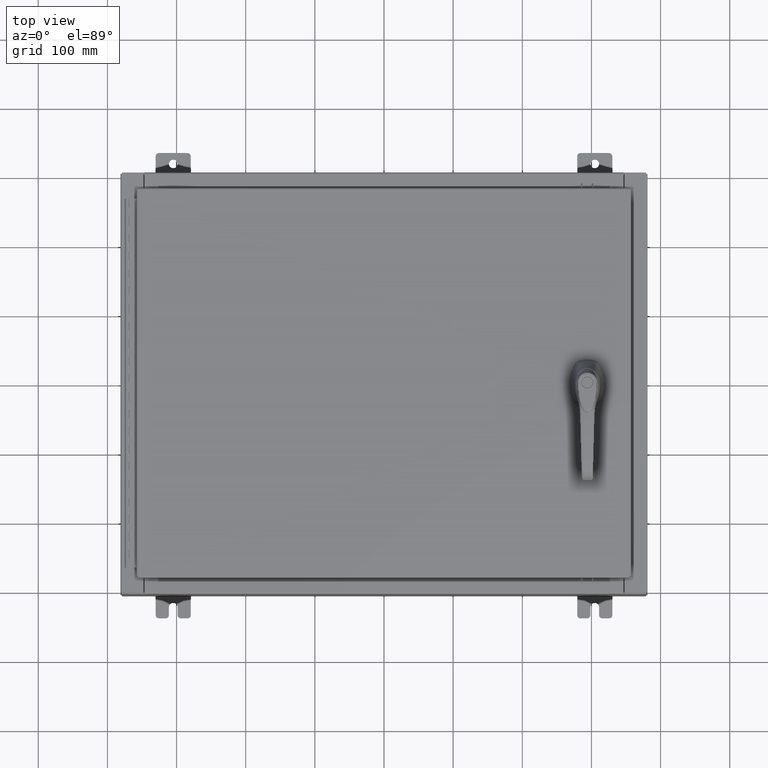
[diagram: clean part render]
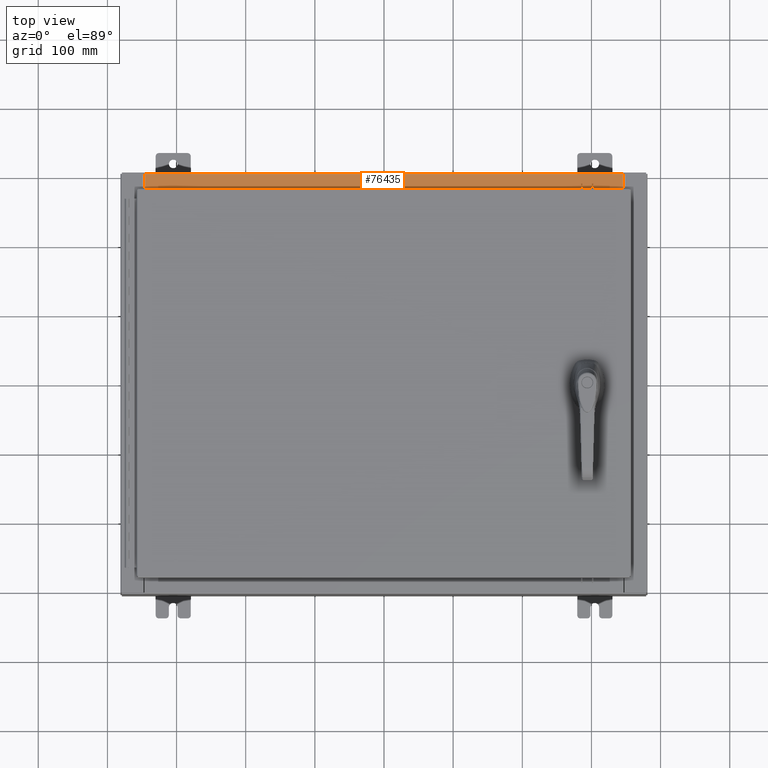
[diagram: same view with one face highlighted and labeled with its STEP entity id]
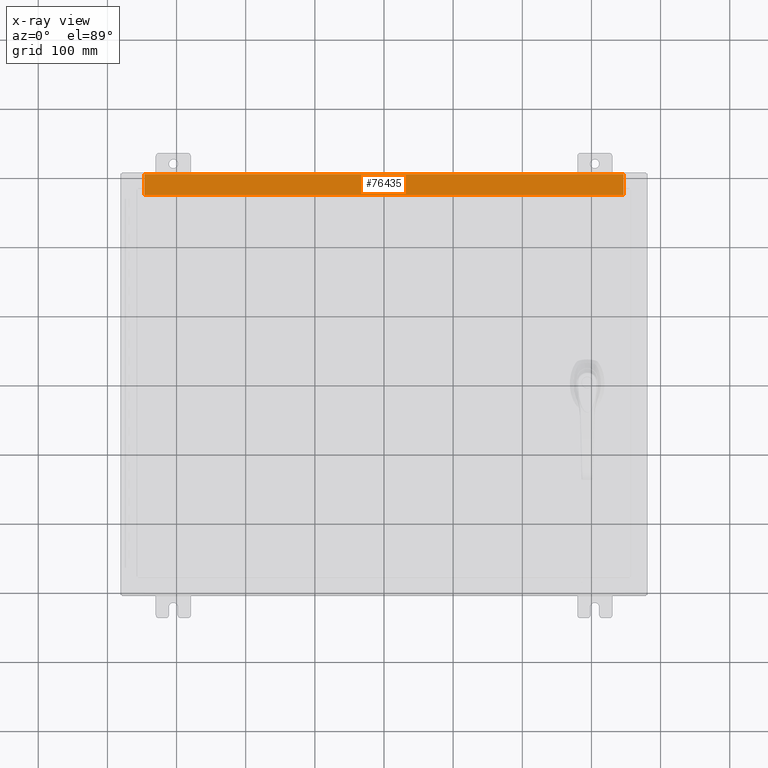
[diagram: x-ray of the same camera — body ghosted, the highlighted face saturated]
A machine part, top view. The second image highlights one B-rep face of the part: STEP entity #76435.
The next image is the same camera in x-ray: the body ghosted, the highlighted face saturated — about 0% of this face is hidden behind the body in this view.
In plain terms, the highlighted planar face has unit normal (0, 0, 1).
Its self-contained STEP definition (entity closure, byte-faithful):
#5147 = FACE_OUTER_BOUND ( 'NONE', #111262, .T. ) ;
#6278 = LINE ( 'NONE', #43637, #49646 ) ;
#7821 = DIRECTION ( 'NONE',  ( -0.0000000000000000000, 1.000000000000000000, -3.566381192773190000E-015 ) ) ;
#8275 = EDGE_CURVE ( 'NONE', #11711, #31413, #21058, .T. ) ;
#11711 = VERTEX_POINT ( 'NONE', #78145 ) ;
#18045 = DIRECTION ( 'NONE',  ( -1.000000000000000000, 2.003232330437526000E-017, -7.144290108027600900E-032 ) ) ;
#19559 = DIRECTION ( 'NONE',  ( 0.0000000000000000000, 3.566381192773190000E-015, 1.000000000000000000 ) ) ;
#20508 = VERTEX_POINT ( 'NONE', #100411 ) ;
#21058 = LINE ( 'NONE', #59353, #23793 ) ;
#23546 = CARTESIAN_POINT ( 'NONE',  ( 13.63720000000000400, -0.08769999999999965300, 4.000000000000000000 ) ) ;
#23793 = VECTOR ( 'NONE', #7821, 39.37007874015748100 ) ;
#27927 = PLANE ( 'NONE',  #54985 ) ;
#29462 = CARTESIAN_POINT ( 'NONE',  ( -13.63719999999999800, -0.08770000000000000000, 4.000000000000000000 ) ) ;
#31413 = VERTEX_POINT ( 'NONE', #29462 ) ;
#35457 = CARTESIAN_POINT ( 'NONE',  ( -1.756834753793995900E-018, -0.08770000000000000000, 4.000000000000000900 ) ) ;
#43637 = CARTESIAN_POINT ( 'NONE',  ( 13.63720000000000400, -1.287299999999999900, 4.000000000000003600 ) ) ;
#48880 = VECTOR ( 'NONE', #63060, 39.37007874015748100 ) ;
#49646 = VECTOR ( 'NONE', #52353, 39.37007874015748100 ) ;
#50571 = LINE ( 'NONE', #35457, #70935 ) ;
#51045 = ORIENTED_EDGE ( 'NONE', *, *, #91943, .F. ) ;
#51750 = EDGE_CURVE ( 'NONE', #57984, #31413, #50571, .T. ) ;
#52353 = DIRECTION ( 'NONE',  ( -1.000000000000000000, 0.0000000000000000000, 0.0000000000000000000 ) ) ;
#54306 = LINE ( 'NONE', #71808, #48880 ) ;
#54985 = AXIS2_PLACEMENT_3D ( 'NONE', #62353, #19559, #80152 ) ;
#57984 = VERTEX_POINT ( 'NONE', #23546 ) ;
#59353 = CARTESIAN_POINT ( 'NONE',  ( -13.63719999999999800, -0.07469999999999973900, 4.000000000000000000 ) ) ;
#62353 = CARTESIAN_POINT ( 'NONE',  ( 0.0000000000000000000, 1.425992975200418500E-014, 4.000000000000000000 ) ) ;
#63060 = DIRECTION ( 'NONE',  ( -0.0000000000000000000, -1.000000000000000000, 3.566381192773190000E-015 ) ) ;
#65901 = ORIENTED_EDGE ( 'NONE', *, *, #8275, .F. ) ;
#67148 = ORIENTED_EDGE ( 'NONE', *, *, #82617, .F. ) ;
#70935 = VECTOR ( 'NONE', #18045, 39.37007874015748100 ) ;
#71808 = CARTESIAN_POINT ( 'NONE',  ( 13.63720000000000400, -1.300299999999999800, 4.000000000000004400 ) ) ;
#76435 = ADVANCED_FACE ( 'NONE', ( #5147 ), #27927, .T. ) ;
#78145 = CARTESIAN_POINT ( 'NONE',  ( -13.63719999999999800, -1.287299999999999200, 4.000000000000004400 ) ) ;
#80152 = DIRECTION ( 'NONE',  ( 0.0000000000000000000, -1.000000000000000000, 3.566381192773190000E-015 ) ) ;
#82617 = EDGE_CURVE ( 'NONE', #20508, #11711, #6278, .T. ) ;
#91943 = EDGE_CURVE ( 'NONE', #57984, #20508, #54306, .T. ) ;
#100411 = CARTESIAN_POINT ( 'NONE',  ( 13.63720000000000400, -1.287299999999999900, 4.000000000000004400 ) ) ;
#105232 = ORIENTED_EDGE ( 'NONE', *, *, #51750, .T. ) ;
#111262 = EDGE_LOOP ( 'NONE', ( #65901, #67148, #51045, #105232 ) ) ;